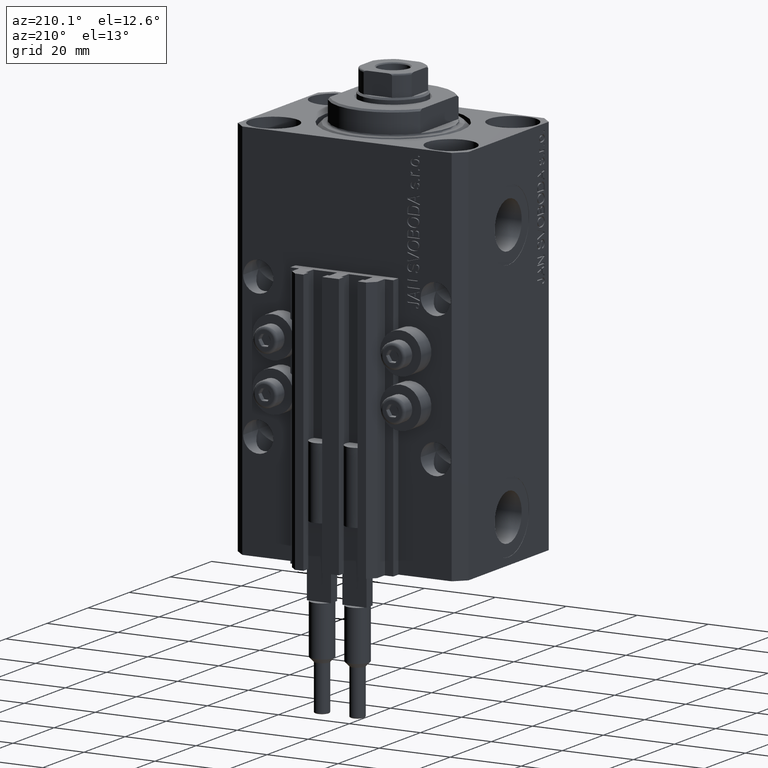
[diagram: clean part render]
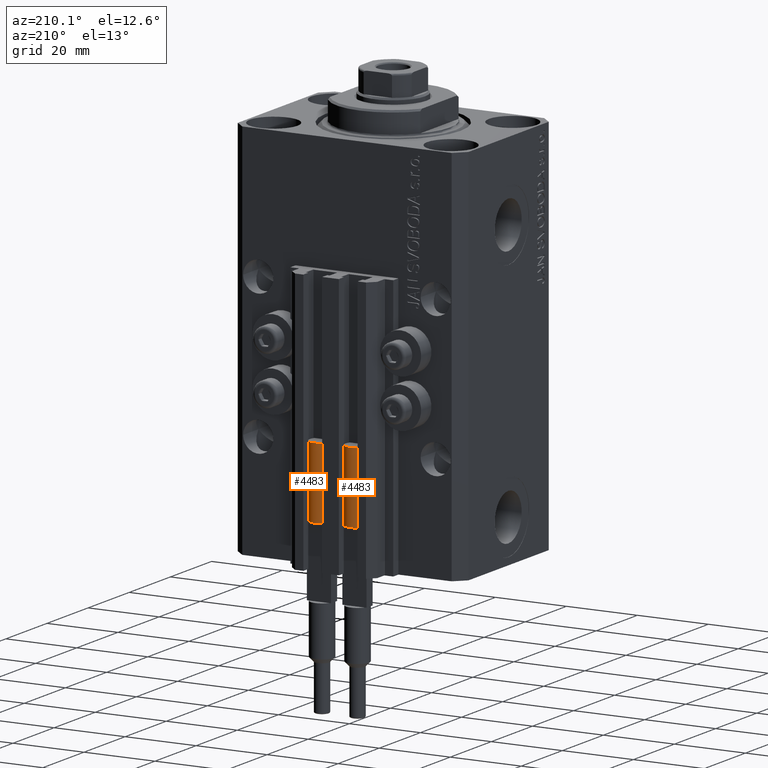
[diagram: same view with one multi-face feature highlighted, each face labeled with its STEP entity id]
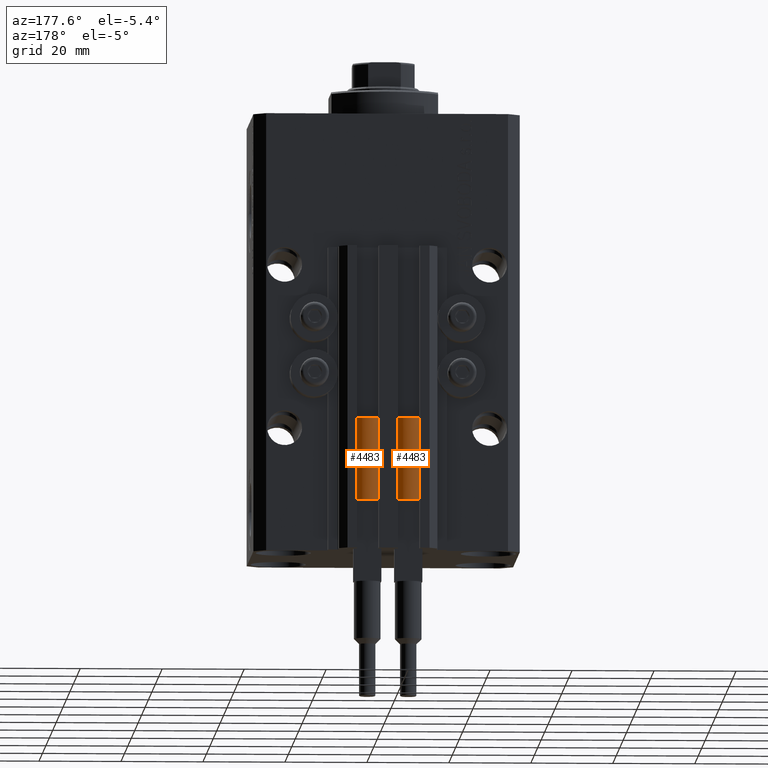
[diagram: same view with one multi-face feature highlighted, each face labeled with its STEP entity id]
A machine part, auxiliary view. The highlighted faces form ONE feature: a constant-radius fillet chain: 2 tangent blend faces with common blend radius 3.4 mm. The faces share edges in the B-rep.
A second angle (auxiliary view) of the same feature is appended — it is thin or edge-on in the first view.
Their STEP definitions:
[1] entity #4483 (Cylinder):
#147 = CIRCLE ( 'NONE', #30265, 3.400000000000000355 ) ;
#2306 = FACE_OUTER_BOUND ( 'NONE', #40909, .T. ) ;
#2517 = AXIS2_PLACEMENT_3D ( 'NONE', #24818, #28041, #35713 ) ;
#3038 = CARTESIAN_POINT ( 'NONE',  ( -3.400000000000000355, 0.000000000000000000, 20.00000000000000000 ) ) ;
#3137 = ORIENTED_EDGE ( 'NONE', *, *, #9797, .F. ) ;
#3330 = VERTEX_POINT ( 'NONE', #29398 ) ;
#4190 = VERTEX_POINT ( 'NONE', #36353 ) ;
#4483 = ADVANCED_FACE ( 'NONE', ( #2306 ), #33814, .T. ) ;
#4540 = VERTEX_POINT ( 'NONE', #44730 ) ;
#5379 = CARTESIAN_POINT ( 'NONE',  ( 0.000000000000000000, 0.000000000000000000, 20.00000000000000000 ) ) ;
#5855 = CARTESIAN_POINT ( 'NONE',  ( -3.399999999999999467, -4.915049848600952119E-16, 20.00000000000000000 ) ) ;
#6777 = LINE ( 'NONE', #3038, #26025 ) ;
#7897 = DIRECTION ( 'NONE',  ( 1.000000000000000000, 0.000000000000000000, 0.000000000000000000 ) ) ;
#8849 = DIRECTION ( 'NONE',  ( 1.000000000000000000, 0.000000000000000000, 0.000000000000000000 ) ) ;
#9340 = DIRECTION ( 'NONE',  ( 0.000000000000000000, 0.000000000000000000, 1.000000000000000000 ) ) ;
#9797 = EDGE_CURVE ( 'NONE', #4190, #4540, #46116, .T. ) ;
#9982 = EDGE_CURVE ( 'NONE', #44855, #4190, #36588, .T. ) ;
#10575 = ORIENTED_EDGE ( 'NONE', *, *, #27460, .F. ) ;
#11235 = CARTESIAN_POINT ( 'NONE',  ( 0.000000000000000000, 0.000000000000000000, 20.00000000000000000 ) ) ;
#11627 = LINE ( 'NONE', #26772, #20760 ) ;
#12046 = ORIENTED_EDGE ( 'NONE', *, *, #9982, .F. ) ;
#12345 = VERTEX_POINT ( 'NONE', #5855 ) ;
#15687 = CARTESIAN_POINT ( 'NONE',  ( 3.400000000000000355, 4.163799117101001052E-16, 0.000000000000000000 ) ) ;
#15752 = ORIENTED_EDGE ( 'NONE', *, *, #19481, .T. ) ;
#15906 = DIRECTION ( 'NONE',  ( 1.000000000000000000, 0.000000000000000000, 0.000000000000000000 ) ) ;
#15929 = EDGE_CURVE ( 'NONE', #12345, #3330, #6777, .T. ) ;
#17377 = ORIENTED_EDGE ( 'NONE', *, *, #15929, .F. ) ;
#19398 = DIRECTION ( 'NONE',  ( 0.000000000000000000, 0.000000000000000000, 1.000000000000000000 ) ) ;
#19481 = EDGE_CURVE ( 'NONE', #46525, #3330, #40418, .T. ) ;
#19488 = ORIENTED_EDGE ( 'NONE', *, *, #42361, .T. ) ;
#20760 = VECTOR ( 'NONE', #41884, 1000.000000000000000 ) ;
#23785 = AXIS2_PLACEMENT_3D ( 'NONE', #46649, #19398, #15906 ) ;
#24818 = CARTESIAN_POINT ( 'NONE',  ( 0.000000000000000000, 0.000000000000000000, 20.00000000000000000 ) ) ;
#26025 = VECTOR ( 'NONE', #26132, 1000.000000000000000 ) ;
#26132 = DIRECTION ( 'NONE',  ( -0.000000000000000000, -0.000000000000000000, -1.000000000000000000 ) ) ;
#26772 = CARTESIAN_POINT ( 'NONE',  ( 3.400000000000000355, 4.163799117101001052E-16, 20.00000000000000000 ) ) ;
#27460 = EDGE_CURVE ( 'NONE', #4540, #12345, #147, .T. ) ;
#28041 = DIRECTION ( 'NONE',  ( 0.000000000000000000, 0.000000000000000000, 1.000000000000000000 ) ) ;
#29398 = CARTESIAN_POINT ( 'NONE',  ( -3.400000000000000355, 0.000000000000000000, 0.000000000000000000 ) ) ;
#30259 = AXIS2_PLACEMENT_3D ( 'NONE', #5379, #9340, #8849 ) ;
#30265 = AXIS2_PLACEMENT_3D ( 'NONE', #45609, #41882, #7897 ) ;
#33814 = CYLINDRICAL_SURFACE ( 'NONE', #45937, 3.400000000000000355 ) ;
#35713 = DIRECTION ( 'NONE',  ( 1.000000000000000000, 0.000000000000000000, 0.000000000000000000 ) ) ;
#36353 = CARTESIAN_POINT ( 'NONE',  ( 3.051229260478471428, 1.500000000000000000, 20.00000000000000000 ) ) ;
#36588 = CIRCLE ( 'NONE', #30259, 3.400000000000000355 ) ;
#37276 = DIRECTION ( 'NONE',  ( -1.000000000000000000, 0.000000000000000000, 0.000000000000000000 ) ) ;
#40418 = CIRCLE ( 'NONE', #23785, 3.400000000000000355 ) ;
#40909 = EDGE_LOOP ( 'NONE', ( #12046, #19488, #15752, #17377, #10575, #3137 ) ) ;
#41882 = DIRECTION ( 'NONE',  ( 0.000000000000000000, 0.000000000000000000, 1.000000000000000000 ) ) ;
#41884 = DIRECTION ( 'NONE',  ( -0.000000000000000000, -0.000000000000000000, -1.000000000000000000 ) ) ;
#42361 = EDGE_CURVE ( 'NONE', #44855, #46525, #11627, .T. ) ;
#44730 = CARTESIAN_POINT ( 'NONE',  ( -3.051229260478471428, 1.500000000000000000, 20.00000000000000000 ) ) ;
#44855 = VERTEX_POINT ( 'NONE', #48317 ) ;
#44966 = DIRECTION ( 'NONE',  ( -0.000000000000000000, -0.000000000000000000, -1.000000000000000000 ) ) ;
#45609 = CARTESIAN_POINT ( 'NONE',  ( 0.000000000000000000, 0.000000000000000000, 20.00000000000000000 ) ) ;
#45937 = AXIS2_PLACEMENT_3D ( 'NONE', #11235, #44966, #37276 ) ;
#46116 = CIRCLE ( 'NONE', #2517, 3.400000000000000355 ) ;
#46525 = VERTEX_POINT ( 'NONE', #15687 ) ;
#46649 = CARTESIAN_POINT ( 'NONE',  ( 0.000000000000000000, 0.000000000000000000, 0.000000000000000000 ) ) ;
#48317 = CARTESIAN_POINT ( 'NONE',  ( 3.400000000000000355, 0.000000000000000000, 20.00000000000000000 ) ) ;
[2] entity #4483 (Cylinder):
#147 = CIRCLE ( 'NONE', #30265, 3.400000000000000355 ) ;
#2306 = FACE_OUTER_BOUND ( 'NONE', #40909, .T. ) ;
#2517 = AXIS2_PLACEMENT_3D ( 'NONE', #24818, #28041, #35713 ) ;
#3038 = CARTESIAN_POINT ( 'NONE',  ( -3.400000000000000355, 0.000000000000000000, 20.00000000000000000 ) ) ;
#3137 = ORIENTED_EDGE ( 'NONE', *, *, #9797, .F. ) ;
#3330 = VERTEX_POINT ( 'NONE', #29398 ) ;
#4190 = VERTEX_POINT ( 'NONE', #36353 ) ;
#4483 = ADVANCED_FACE ( 'NONE', ( #2306 ), #33814, .T. ) ;
#4540 = VERTEX_POINT ( 'NONE', #44730 ) ;
#5379 = CARTESIAN_POINT ( 'NONE',  ( 0.000000000000000000, 0.000000000000000000, 20.00000000000000000 ) ) ;
#5855 = CARTESIAN_POINT ( 'NONE',  ( -3.399999999999999467, -4.915049848600952119E-16, 20.00000000000000000 ) ) ;
#6777 = LINE ( 'NONE', #3038, #26025 ) ;
#7897 = DIRECTION ( 'NONE',  ( 1.000000000000000000, 0.000000000000000000, 0.000000000000000000 ) ) ;
#8849 = DIRECTION ( 'NONE',  ( 1.000000000000000000, 0.000000000000000000, 0.000000000000000000 ) ) ;
#9340 = DIRECTION ( 'NONE',  ( 0.000000000000000000, 0.000000000000000000, 1.000000000000000000 ) ) ;
#9797 = EDGE_CURVE ( 'NONE', #4190, #4540, #46116, .T. ) ;
#9982 = EDGE_CURVE ( 'NONE', #44855, #4190, #36588, .T. ) ;
#10575 = ORIENTED_EDGE ( 'NONE', *, *, #27460, .F. ) ;
#11235 = CARTESIAN_POINT ( 'NONE',  ( 0.000000000000000000, 0.000000000000000000, 20.00000000000000000 ) ) ;
#11627 = LINE ( 'NONE', #26772, #20760 ) ;
#12046 = ORIENTED_EDGE ( 'NONE', *, *, #9982, .F. ) ;
#12345 = VERTEX_POINT ( 'NONE', #5855 ) ;
#15687 = CARTESIAN_POINT ( 'NONE',  ( 3.400000000000000355, 4.163799117101001052E-16, 0.000000000000000000 ) ) ;
#15752 = ORIENTED_EDGE ( 'NONE', *, *, #19481, .T. ) ;
#15906 = DIRECTION ( 'NONE',  ( 1.000000000000000000, 0.000000000000000000, 0.000000000000000000 ) ) ;
#15929 = EDGE_CURVE ( 'NONE', #12345, #3330, #6777, .T. ) ;
#17377 = ORIENTED_EDGE ( 'NONE', *, *, #15929, .F. ) ;
#19398 = DIRECTION ( 'NONE',  ( 0.000000000000000000, 0.000000000000000000, 1.000000000000000000 ) ) ;
#19481 = EDGE_CURVE ( 'NONE', #46525, #3330, #40418, .T. ) ;
#19488 = ORIENTED_EDGE ( 'NONE', *, *, #42361, .T. ) ;
#20760 = VECTOR ( 'NONE', #41884, 1000.000000000000000 ) ;
#23785 = AXIS2_PLACEMENT_3D ( 'NONE', #46649, #19398, #15906 ) ;
#24818 = CARTESIAN_POINT ( 'NONE',  ( 0.000000000000000000, 0.000000000000000000, 20.00000000000000000 ) ) ;
#26025 = VECTOR ( 'NONE', #26132, 1000.000000000000000 ) ;
#26132 = DIRECTION ( 'NONE',  ( -0.000000000000000000, -0.000000000000000000, -1.000000000000000000 ) ) ;
#26772 = CARTESIAN_POINT ( 'NONE',  ( 3.400000000000000355, 4.163799117101001052E-16, 20.00000000000000000 ) ) ;
#27460 = EDGE_CURVE ( 'NONE', #4540, #12345, #147, .T. ) ;
#28041 = DIRECTION ( 'NONE',  ( 0.000000000000000000, 0.000000000000000000, 1.000000000000000000 ) ) ;
#29398 = CARTESIAN_POINT ( 'NONE',  ( -3.400000000000000355, 0.000000000000000000, 0.000000000000000000 ) ) ;
#30259 = AXIS2_PLACEMENT_3D ( 'NONE', #5379, #9340, #8849 ) ;
#30265 = AXIS2_PLACEMENT_3D ( 'NONE', #45609, #41882, #7897 ) ;
#33814 = CYLINDRICAL_SURFACE ( 'NONE', #45937, 3.400000000000000355 ) ;
#35713 = DIRECTION ( 'NONE',  ( 1.000000000000000000, 0.000000000000000000, 0.000000000000000000 ) ) ;
#36353 = CARTESIAN_POINT ( 'NONE',  ( 3.051229260478471428, 1.500000000000000000, 20.00000000000000000 ) ) ;
#36588 = CIRCLE ( 'NONE', #30259, 3.400000000000000355 ) ;
#37276 = DIRECTION ( 'NONE',  ( -1.000000000000000000, 0.000000000000000000, 0.000000000000000000 ) ) ;
#40418 = CIRCLE ( 'NONE', #23785, 3.400000000000000355 ) ;
#40909 = EDGE_LOOP ( 'NONE', ( #12046, #19488, #15752, #17377, #10575, #3137 ) ) ;
#41882 = DIRECTION ( 'NONE',  ( 0.000000000000000000, 0.000000000000000000, 1.000000000000000000 ) ) ;
#41884 = DIRECTION ( 'NONE',  ( -0.000000000000000000, -0.000000000000000000, -1.000000000000000000 ) ) ;
#42361 = EDGE_CURVE ( 'NONE', #44855, #46525, #11627, .T. ) ;
#44730 = CARTESIAN_POINT ( 'NONE',  ( -3.051229260478471428, 1.500000000000000000, 20.00000000000000000 ) ) ;
#44855 = VERTEX_POINT ( 'NONE', #48317 ) ;
#44966 = DIRECTION ( 'NONE',  ( -0.000000000000000000, -0.000000000000000000, -1.000000000000000000 ) ) ;
#45609 = CARTESIAN_POINT ( 'NONE',  ( 0.000000000000000000, 0.000000000000000000, 20.00000000000000000 ) ) ;
#45937 = AXIS2_PLACEMENT_3D ( 'NONE', #11235, #44966, #37276 ) ;
#46116 = CIRCLE ( 'NONE', #2517, 3.400000000000000355 ) ;
#46525 = VERTEX_POINT ( 'NONE', #15687 ) ;
#46649 = CARTESIAN_POINT ( 'NONE',  ( 0.000000000000000000, 0.000000000000000000, 0.000000000000000000 ) ) ;
#48317 = CARTESIAN_POINT ( 'NONE',  ( 3.400000000000000355, 0.000000000000000000, 20.00000000000000000 ) ) ;